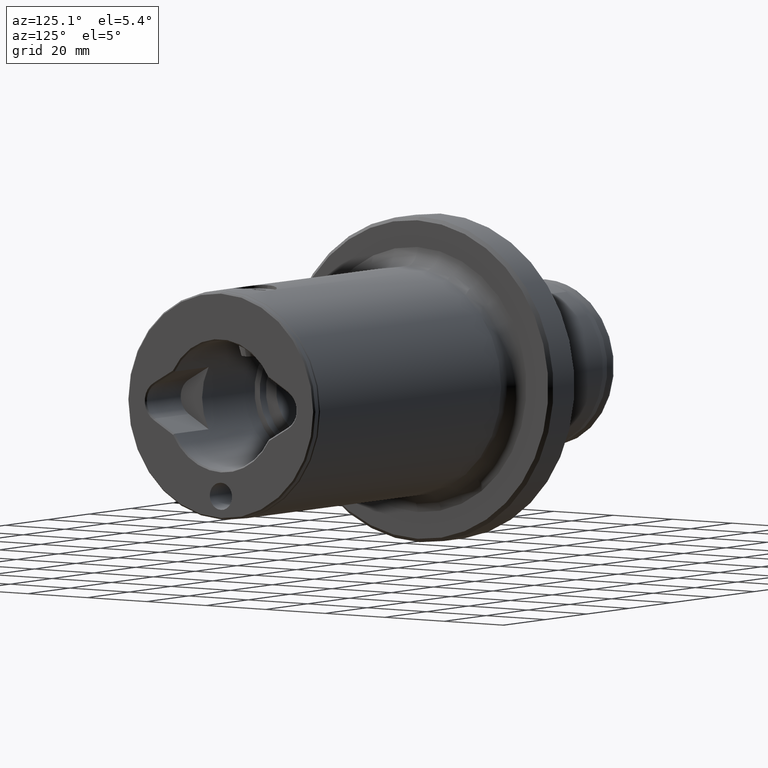
[diagram: clean part render]
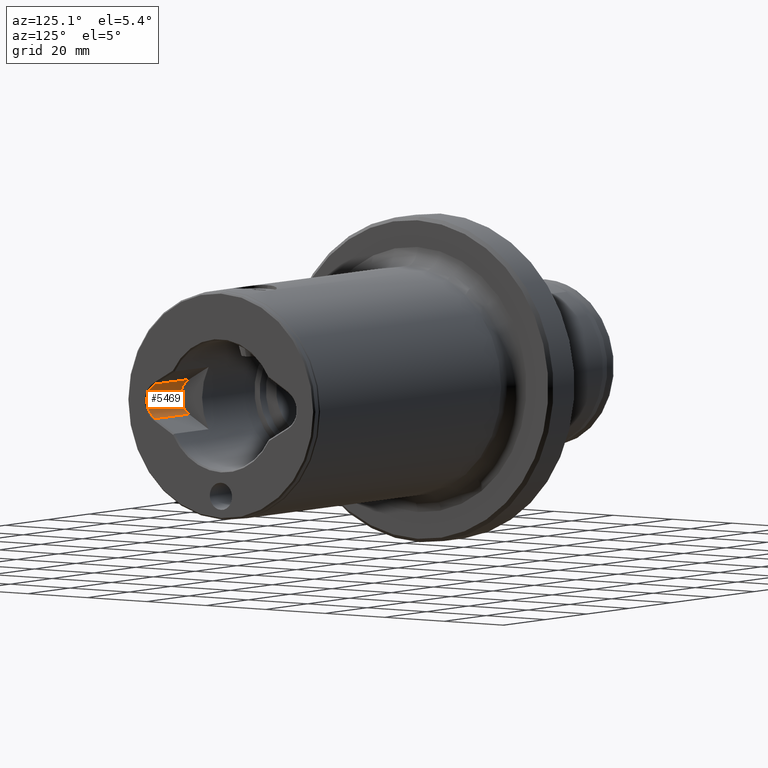
[diagram: same view with one face highlighted and labeled with its STEP entity id]
A machine part, auxiliary view. The second image highlights one B-rep face of the part: STEP entity #5469.
In plain terms, the highlighted cylindrical surface (edge-blend (fillet) strip) has radius 5.5 mm, axis along (1, 0, 0).
Its self-contained STEP definition (entity closure, byte-faithful):
#151 = ORIENTED_EDGE ( 'NONE', *, *, #187, .T. ) ;
#161 = ORIENTED_EDGE ( 'NONE', *, *, #4212, .T. ) ;
#187 = EDGE_CURVE ( 'NONE', #1082, #1144, #3761, .T. ) ;
#374 = CARTESIAN_POINT ( 'NONE',  ( 139.3999999999490700, -19.70000000000007400, -1.040834085586084300E-014 ) ) ;
#466 = DIRECTION ( 'NONE',  ( 0.0000000000000000000, 0.0000000000000000000, -1.000000000000000000 ) ) ;
#540 = VECTOR ( 'NONE', #2367, 1000.000000000000000 ) ;
#699 = CIRCLE ( 'NONE', #5399, 5.499999999999960900 ) ;
#967 = EDGE_CURVE ( 'NONE', #4339, #2294, #4751, .T. ) ;
#1038 = DIRECTION ( 'NONE',  ( 1.000000000000000000, 0.0000000000000000000, 0.0000000000000000000 ) ) ;
#1082 = VERTEX_POINT ( 'NONE', #1327 ) ;
#1144 = VERTEX_POINT ( 'NONE', #4280 ) ;
#1327 = CARTESIAN_POINT ( 'NONE',  ( 139.3999999999490700, -22.45000000000005600, 4.763139720814368000 ) ) ;
#1571 = AXIS2_PLACEMENT_3D ( 'NONE', #374, #3756, #466 ) ;
#1621 = DIRECTION ( 'NONE',  ( 1.000000000000000000, 0.0000000000000000000, 0.0000000000000000000 ) ) ;
#2077 = CYLINDRICAL_SURFACE ( 'NONE', #1571, 5.499999999999960900 ) ;
#2223 = FACE_OUTER_BOUND ( 'NONE', #4534, .T. ) ;
#2240 = ORIENTED_EDGE ( 'NONE', *, *, #967, .F. ) ;
#2294 = VERTEX_POINT ( 'NONE', #5364 ) ;
#2367 = DIRECTION ( 'NONE',  ( 1.000000000000000000, -0.0000000000000000000, -0.0000000000000000000 ) ) ;
#2520 = DIRECTION ( 'NONE',  ( 1.000000000000000000, -0.0000000000000000000, -0.0000000000000000000 ) ) ;
#2605 = CARTESIAN_POINT ( 'NONE',  ( 139.3999999999490700, -22.45000000000006000, -4.763139720814393700 ) ) ;
#2754 = CIRCLE ( 'NONE', #4376, 5.499999999999960900 ) ;
#3391 = ORIENTED_EDGE ( 'NONE', *, *, #4595, .F. ) ;
#3504 = VECTOR ( 'NONE', #2520, 1000.000000000000000 ) ;
#3558 = CARTESIAN_POINT ( 'NONE',  ( 139.3999999999490700, -19.70000000000007400, -1.040834085586084300E-014 ) ) ;
#3756 = DIRECTION ( 'NONE',  ( 1.000000000000000000, -0.0000000000000000000, -0.0000000000000000000 ) ) ;
#3761 = LINE ( 'NONE', #4448, #540 ) ;
#3775 = CARTESIAN_POINT ( 'NONE',  ( 139.3999999999490700, -22.45000000000006000, -4.763139720814393700 ) ) ;
#3978 = DIRECTION ( 'NONE',  ( 0.0000000000000000000, 0.0000000000000000000, -1.000000000000000000 ) ) ;
#4143 = CARTESIAN_POINT ( 'NONE',  ( 155.5999999999999700, -19.70000000000007400, -1.040834085586084300E-014 ) ) ;
#4212 = EDGE_CURVE ( 'NONE', #1144, #2294, #2754, .T. ) ;
#4280 = CARTESIAN_POINT ( 'NONE',  ( 155.5999999999999700, -22.45000000000005600, 4.763139720814368000 ) ) ;
#4339 = VERTEX_POINT ( 'NONE', #2605 ) ;
#4376 = AXIS2_PLACEMENT_3D ( 'NONE', #4143, #1621, #4572 ) ;
#4448 = CARTESIAN_POINT ( 'NONE',  ( 139.3999999999490700, -22.45000000000005600, 4.763139720814368000 ) ) ;
#4534 = EDGE_LOOP ( 'NONE', ( #151, #161, #2240, #3391 ) ) ;
#4572 = DIRECTION ( 'NONE',  ( 0.0000000000000000000, 0.0000000000000000000, -1.000000000000000000 ) ) ;
#4595 = EDGE_CURVE ( 'NONE', #1082, #4339, #699, .T. ) ;
#4751 = LINE ( 'NONE', #3775, #3504 ) ;
#5364 = CARTESIAN_POINT ( 'NONE',  ( 155.5999999999999700, -22.45000000000006000, -4.763139720814393700 ) ) ;
#5399 = AXIS2_PLACEMENT_3D ( 'NONE', #3558, #1038, #3978 ) ;
#5469 = ADVANCED_FACE ( 'NONE', ( #2223 ), #2077, .F. ) ;